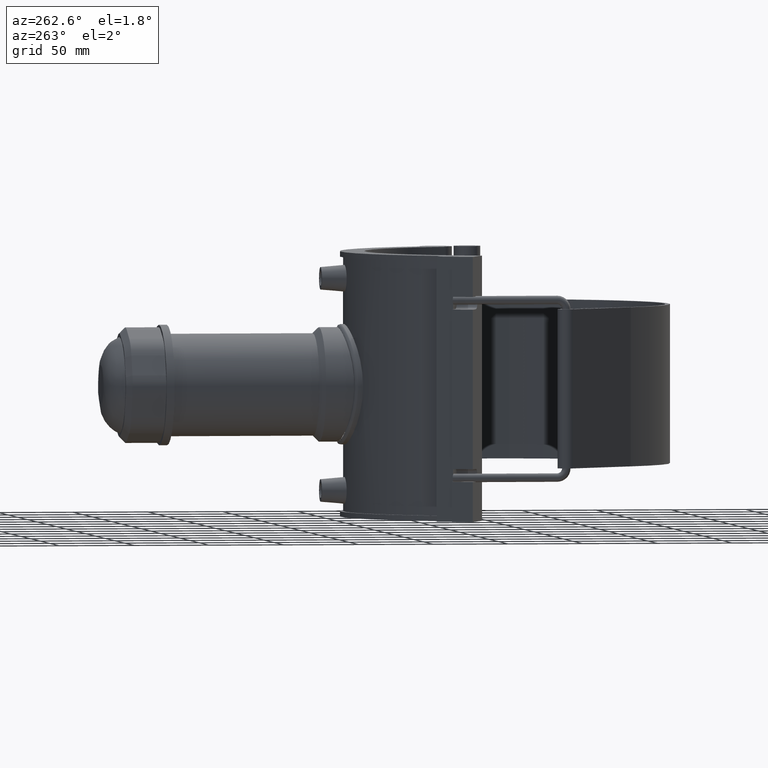
[diagram: clean part render]
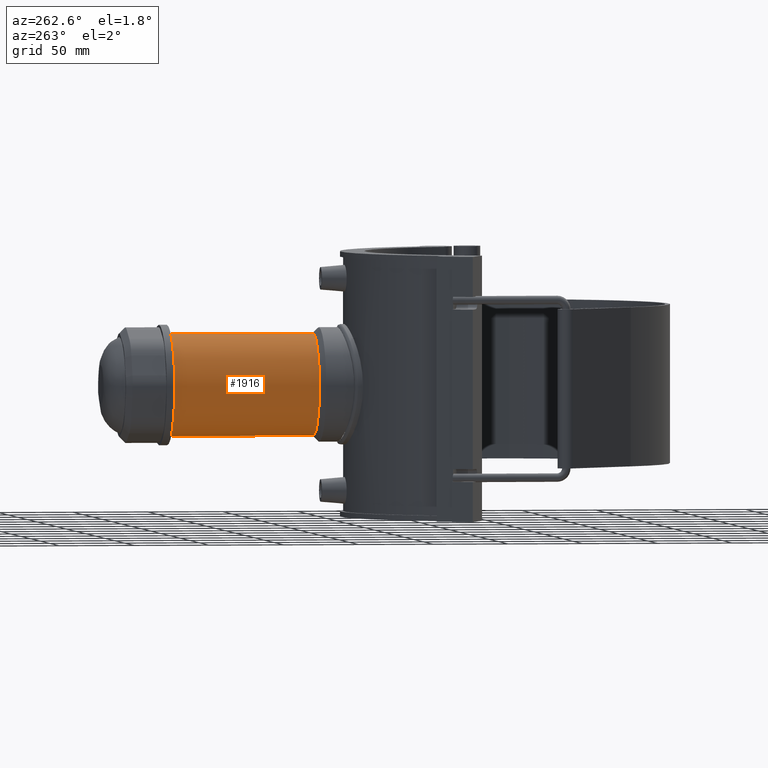
[diagram: same view with one face highlighted and labeled with its STEP entity id]
A machine part, auxiliary view. The second image highlights one B-rep face of the part: STEP entity #1916.
In plain terms, the highlighted cylindrical surface (bore or boss wall) has radius 34 mm, axis along (0, 1, 0).
Its self-contained STEP definition (entity closure, byte-faithful):
#370=FACE_BOUND('',#626,.T.);
#371=FACE_BOUND('',#627,.T.);
#404=B_SPLINE_CURVE_WITH_KNOTS('',3,(#3012,#3013,#3014,#3015,#3016,#3017,
#3018,#3019,#3020,#3021,#3022,#3023,#3024,#3025,#3026,#3027,#3028,#3029,
#3030,#3031,#3032,#3033,#3034,#3035,#3036,#3037,#3038,#3039,#3040,#3041,
#3042,#3043,#3044,#3045,#3046,#3047,#3048,#3049,#3050,#3051,#3052,#3053,
#3054,#3055,#3056,#3057,#3058,#3059,#3060,#3061,#3062,#3063,#3064,#3065,
#3066,#3067,#3068,#3069,#3070,#3071,#3072,#3073,#3074,#3075,#3076,#3077),
 .UNSPECIFIED.,.T.,.F.,(4,2,2,2,2,2,2,2,2,2,2,2,2,2,2,2,2,2,2,2,2,2,2,2,
2,2,2,2,2,2,2,2,4),(0.,0.501423462364538,1.00284692472908,1.50427038709361,
2.00569384945815,2.49770749212408,2.98972113479001,3.48173477745595,3.97374842012188,
4.46576206278781,4.95777570545374,5.44978934811968,5.94180299078561,6.44322645315015,
6.94464991551468,7.44607337787922,7.94749684024376,8.4489203026083,8.95034376497283,
9.45176722733737,9.95319068970191,10.4452043323678,10.9372179750338,11.4292316176997,
11.9212452603656,12.4132589030316,12.9052725456975,13.3972861883634,13.8892998310294,
14.3907232933939,14.8921467557584,15.393570218123,15.8949936804875),
 .UNSPECIFIED.);
#426=CYLINDRICAL_SURFACE('',#2070,34.);
#495=FACE_OUTER_BOUND('',#625,.T.);
#625=EDGE_LOOP('',(#1447));
#626=EDGE_LOOP('',(#1448));
#627=EDGE_LOOP('',(#1449));
#758=CIRCLE('',#2053,34.);
#765=CIRCLE('',#2071,34.);
#825=VERTEX_POINT('',#3011);
#869=VERTEX_POINT('',#3216);
#879=VERTEX_POINT('',#3285);
#1003=EDGE_CURVE('',#825,#825,#404,.T.);
#1071=EDGE_CURVE('',#869,#869,#758,.T.);
#1090=EDGE_CURVE('',#879,#879,#765,.T.);
#1447=ORIENTED_EDGE('',*,*,#1071,.T.);
#1448=ORIENTED_EDGE('',*,*,#1003,.T.);
#1449=ORIENTED_EDGE('',*,*,#1090,.F.);
#1916=ADVANCED_FACE('',(#495,#370,#371),#426,.T.);
#2053=AXIS2_PLACEMENT_3D('',#3217,#2369,#2370);
#2070=AXIS2_PLACEMENT_3D('',#3284,#2414,#2415);
#2071=AXIS2_PLACEMENT_3D('',#3286,#2416,#2417);
#2369=DIRECTION('center_axis',(0.,1.,3.06161699786838E-16));
#2370=DIRECTION('ref_axis',(1.,0.,0.));
#2414=DIRECTION('center_axis',(0.,1.,3.06161699786838E-16));
#2415=DIRECTION('ref_axis',(0.,0.,1.));
#2416=DIRECTION('center_axis',(0.,1.,3.06161699786838E-16));
#2417=DIRECTION('ref_axis',(1.,0.,0.));
#3011=CARTESIAN_POINT('',(23.0434372436058,164.,-25.));
#3012=CARTESIAN_POINT('Ctrl Pts',(23.0434372436058,164.,-25.));
#3013=CARTESIAN_POINT('Ctrl Pts',(23.0434372436058,162.328588458785,-25.));
#3014=CARTESIAN_POINT('Ctrl Pts',(23.2309203977846,160.646550607373,-24.8305628998378));
#3015=CARTESIAN_POINT('Ctrl Pts',(23.9257443940733,157.365905435695,-24.1617728855518));
#3016=CARTESIAN_POINT('Ctrl Pts',(24.4301919771156,155.766602964021,-23.6628274152041));
#3017=CARTESIAN_POINT('Ctrl Pts',(25.6134799710778,152.730343376207,-22.376621951029));
#3018=CARTESIAN_POINT('Ctrl Pts',(26.2915359537806,151.290315359978,-21.5881969088422));
#3019=CARTESIAN_POINT('Ctrl Pts',(27.676249250508,148.629053595541,-19.781818321319));
#3020=CARTESIAN_POINT('Ctrl Pts',(28.3823054397829,147.407918974969,-18.7632580342963));
#3021=CARTESIAN_POINT('Ctrl Pts',(29.6914374098498,145.257114351246,-16.6124534105738));
#3022=CARTESIAN_POINT('Ctrl Pts',(30.3461500623177,144.242876743321,-15.4028346986507));
#3023=CARTESIAN_POINT('Ctrl Pts',(31.556002557397,142.430660802769,-12.7418539840396));
#3024=CARTESIAN_POINT('Ctrl Pts',(32.1105757774931,141.632604545035,-11.290287462657));
#3025=CARTESIAN_POINT('Ctrl Pts',(33.0288888505233,140.333170664873,-8.22509487988041));
#3026=CARTESIAN_POINT('Ctrl Pts',(33.3931545061578,139.830702816447,-6.60804849592092));
#3027=CARTESIAN_POINT('Ctrl Pts',(33.8788437061054,139.163973559779,-3.31557264402858));
#3028=CARTESIAN_POINT('Ctrl Pts',(34.,139.,-1.64004547555311));
#3029=CARTESIAN_POINT('Ctrl Pts',(34.,139.,1.6400454755531));
#3030=CARTESIAN_POINT('Ctrl Pts',(33.8788437061054,139.163973559779,3.31557264402857));
#3031=CARTESIAN_POINT('Ctrl Pts',(33.3931545061578,139.830702816447,6.60804849592092));
#3032=CARTESIAN_POINT('Ctrl Pts',(33.0288888505233,140.333170664873,8.22509487988041));
#3033=CARTESIAN_POINT('Ctrl Pts',(32.1105757774932,141.632604545035,11.290287462657));
#3034=CARTESIAN_POINT('Ctrl Pts',(31.556002557397,142.430660802769,12.7418539840396));
#3035=CARTESIAN_POINT('Ctrl Pts',(30.3461500623177,144.242876743321,15.4028346986507));
#3036=CARTESIAN_POINT('Ctrl Pts',(29.6914374098498,145.257114351246,16.6124534105738));
#3037=CARTESIAN_POINT('Ctrl Pts',(28.382305439783,147.407918974969,18.7632580342963));
#3038=CARTESIAN_POINT('Ctrl Pts',(27.6762492505081,148.629053595541,19.781818321319));
#3039=CARTESIAN_POINT('Ctrl Pts',(26.2915359537806,151.290315359978,21.5881969088422));
#3040=CARTESIAN_POINT('Ctrl Pts',(25.6134799710778,152.730343376208,22.376621951029));
#3041=CARTESIAN_POINT('Ctrl Pts',(24.4301919771157,155.766602964021,23.6628274152041));
#3042=CARTESIAN_POINT('Ctrl Pts',(23.9257443940733,157.365905435695,24.1617728855518));
#3043=CARTESIAN_POINT('Ctrl Pts',(23.2309203977846,160.646550607373,24.8305628998378));
#3044=CARTESIAN_POINT('Ctrl Pts',(23.0434372436059,162.328588458785,25.));
#3045=CARTESIAN_POINT('Ctrl Pts',(23.0434372436059,165.671411541215,25.));
#3046=CARTESIAN_POINT('Ctrl Pts',(23.2309203977846,167.353449392627,24.8305628998378));
#3047=CARTESIAN_POINT('Ctrl Pts',(23.9257443940733,170.634094564305,24.1617728855518));
#3048=CARTESIAN_POINT('Ctrl Pts',(24.4301919771157,172.233397035979,23.6628274152041));
#3049=CARTESIAN_POINT('Ctrl Pts',(25.6134799710778,175.269656623792,22.376621951029));
#3050=CARTESIAN_POINT('Ctrl Pts',(26.2915359537806,176.709684640022,21.5881969088422));
#3051=CARTESIAN_POINT('Ctrl Pts',(27.676249250508,179.370946404458,19.781818321319));
#3052=CARTESIAN_POINT('Ctrl Pts',(28.382305439783,180.592081025031,18.7632580342963));
#3053=CARTESIAN_POINT('Ctrl Pts',(29.6914374098498,182.742885648754,16.6124534105738));
#3054=CARTESIAN_POINT('Ctrl Pts',(30.3461500623178,183.757123256679,15.4028346986507));
#3055=CARTESIAN_POINT('Ctrl Pts',(31.556002557397,185.569339197231,12.7418539840396));
#3056=CARTESIAN_POINT('Ctrl Pts',(32.1105757774932,186.367395454964,11.290287462657));
#3057=CARTESIAN_POINT('Ctrl Pts',(33.0288888505233,187.666829335127,8.22509487988041));
#3058=CARTESIAN_POINT('Ctrl Pts',(33.3931545061578,188.169297183553,6.60804849592093));
#3059=CARTESIAN_POINT('Ctrl Pts',(33.8788437061054,188.836026440221,3.31557264402858));
#3060=CARTESIAN_POINT('Ctrl Pts',(34.,189.,1.64004547555311));
#3061=CARTESIAN_POINT('Ctrl Pts',(34.,189.,-1.6400454755531));
#3062=CARTESIAN_POINT('Ctrl Pts',(33.8788437061054,188.836026440221,-3.31557264402858));
#3063=CARTESIAN_POINT('Ctrl Pts',(33.3931545061578,188.169297183553,-6.60804849592093));
#3064=CARTESIAN_POINT('Ctrl Pts',(33.0288888505233,187.666829335127,-8.22509487988041));
#3065=CARTESIAN_POINT('Ctrl Pts',(32.1105757774931,186.367395454964,-11.290287462657));
#3066=CARTESIAN_POINT('Ctrl Pts',(31.556002557397,185.569339197231,-12.7418539840396));
#3067=CARTESIAN_POINT('Ctrl Pts',(30.3461500623177,183.757123256679,-15.4028346986506));
#3068=CARTESIAN_POINT('Ctrl Pts',(29.6914374098498,182.742885648754,-16.6124534105738));
#3069=CARTESIAN_POINT('Ctrl Pts',(28.3823054397829,180.592081025031,-18.7632580342963));
#3070=CARTESIAN_POINT('Ctrl Pts',(27.676249250508,179.370946404458,-19.781818321319));
#3071=CARTESIAN_POINT('Ctrl Pts',(26.2915359537806,176.709684640022,-21.5881969088422));
#3072=CARTESIAN_POINT('Ctrl Pts',(25.6134799710777,175.269656623792,-22.376621951029));
#3073=CARTESIAN_POINT('Ctrl Pts',(24.4301919771156,172.233397035979,-23.6628274152041));
#3074=CARTESIAN_POINT('Ctrl Pts',(23.9257443940733,170.634094564305,-24.1617728855518));
#3075=CARTESIAN_POINT('Ctrl Pts',(23.2309203977845,167.353449392627,-24.8305628998378));
#3076=CARTESIAN_POINT('Ctrl Pts',(23.0434372436058,165.671411541215,-25.));
#3077=CARTESIAN_POINT('Ctrl Pts',(23.0434372436058,164.,-25.));
#3216=CARTESIAN_POINT('',(0.,135.1,34.));
#3217=CARTESIAN_POINT('Origin',(0.,135.1,1.0746275662518E-14));
#3284=CARTESIAN_POINT('Origin',(0.,183.925,2.56946206546104E-14));
#3285=CARTESIAN_POINT('',(0.,232.75,34.0000000000001));
#3286=CARTESIAN_POINT('Origin',(0.,232.75,4.06429656467028E-14));